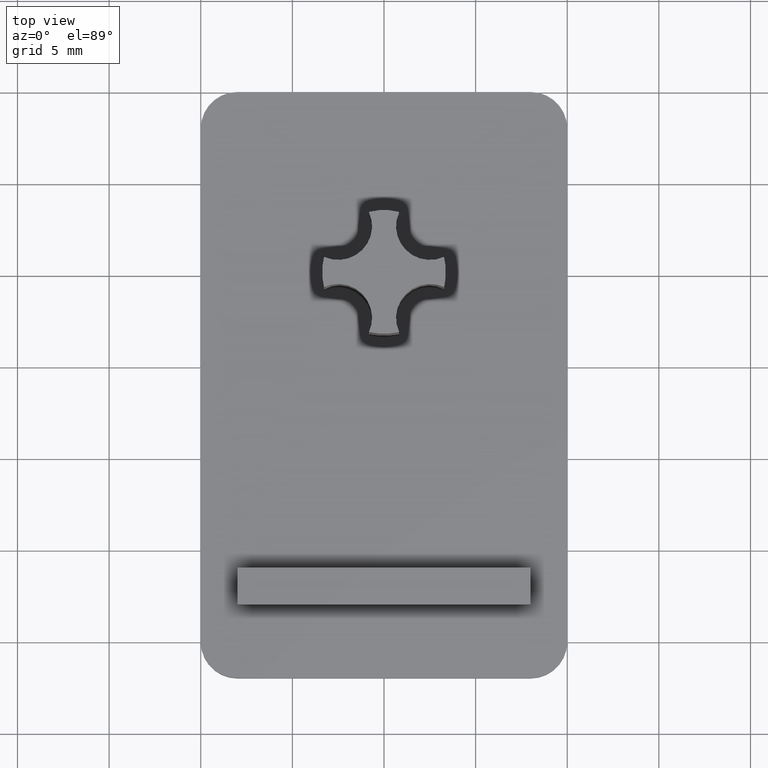
[diagram: clean part render]
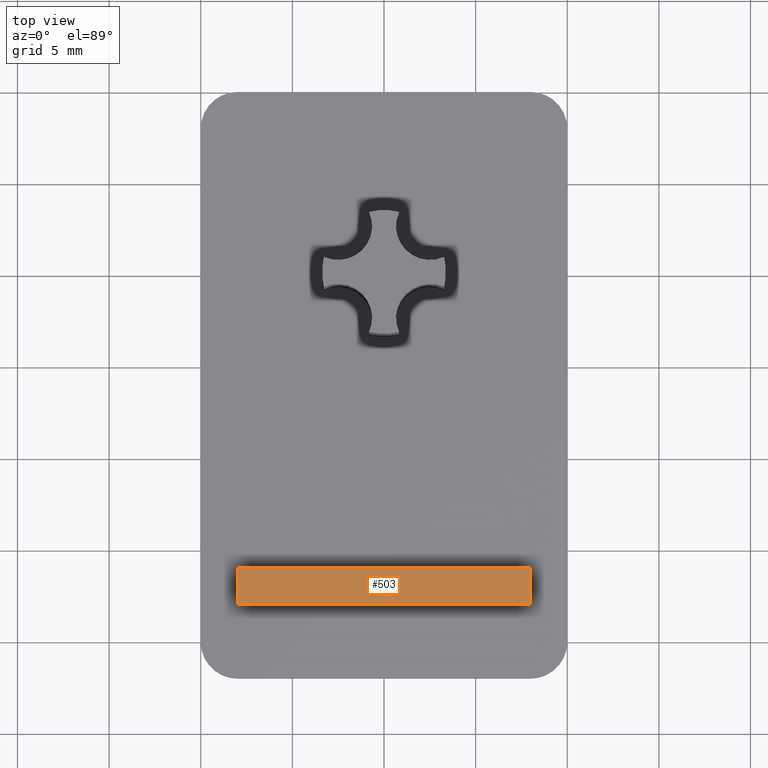
[diagram: same view with one face highlighted and labeled with its STEP entity id]
A machine part, top view. The second image highlights one B-rep face of the part: STEP entity #503.
In plain terms, the highlighted planar face has unit normal (0, 0, 1).
Its self-contained STEP definition (entity closure, byte-faithful):
#24=PLANE('',#552);
#50=FACE_OUTER_BOUND('',#81,.T.);
#81=EDGE_LOOP('',(#390,#391,#392,#393));
#115=LINE('',#822,#155);
#118=LINE('',#828,#158);
#121=LINE('',#834,#161);
#124=LINE('',#838,#164);
#155=VECTOR('',#660,2.);
#158=VECTOR('',#665,16.);
#161=VECTOR('',#670,2.);
#164=VECTOR('',#675,16.);
#229=VERTEX_POINT('',#819);
#230=VERTEX_POINT('',#821);
#232=VERTEX_POINT('',#827);
#234=VERTEX_POINT('',#833);
#285=EDGE_CURVE('',#230,#229,#115,.T.);
#288=EDGE_CURVE('',#232,#230,#118,.T.);
#291=EDGE_CURVE('',#234,#232,#121,.T.);
#294=EDGE_CURVE('',#229,#234,#124,.T.);
#390=ORIENTED_EDGE('',*,*,#294,.T.);
#391=ORIENTED_EDGE('',*,*,#291,.T.);
#392=ORIENTED_EDGE('',*,*,#288,.T.);
#393=ORIENTED_EDGE('',*,*,#285,.T.);
#503=ADVANCED_FACE('',(#50),#24,.T.);
#552=AXIS2_PLACEMENT_3D('',#839,#676,#677);
#660=DIRECTION('',(0.,1.,0.));
#665=DIRECTION('',(1.,0.,0.));
#670=DIRECTION('',(5.55111512312578E-016,-1.,0.));
#675=DIRECTION('',(-1.,0.,0.));
#676=DIRECTION('center_axis',(0.,0.,1.));
#677=DIRECTION('ref_axis',(1.,0.,0.));
#819=CARTESIAN_POINT('',(7.99999999999998,-16.,4.5));
#821=CARTESIAN_POINT('',(7.99999999999998,-18.,4.5));
#822=CARTESIAN_POINT('',(7.99999999999998,-16.,4.5));
#827=CARTESIAN_POINT('',(-8.00000000000001,-18.,4.5));
#828=CARTESIAN_POINT('',(7.99999999999998,-18.,4.5));
#833=CARTESIAN_POINT('',(-8.00000000000001,-16.,4.5));
#834=CARTESIAN_POINT('',(-8.00000000000001,-18.,4.5));
#838=CARTESIAN_POINT('',(-8.00000000000001,-16.,4.5));
#839=CARTESIAN_POINT('Origin',(-1.43403807347416E-014,-17.,4.5));